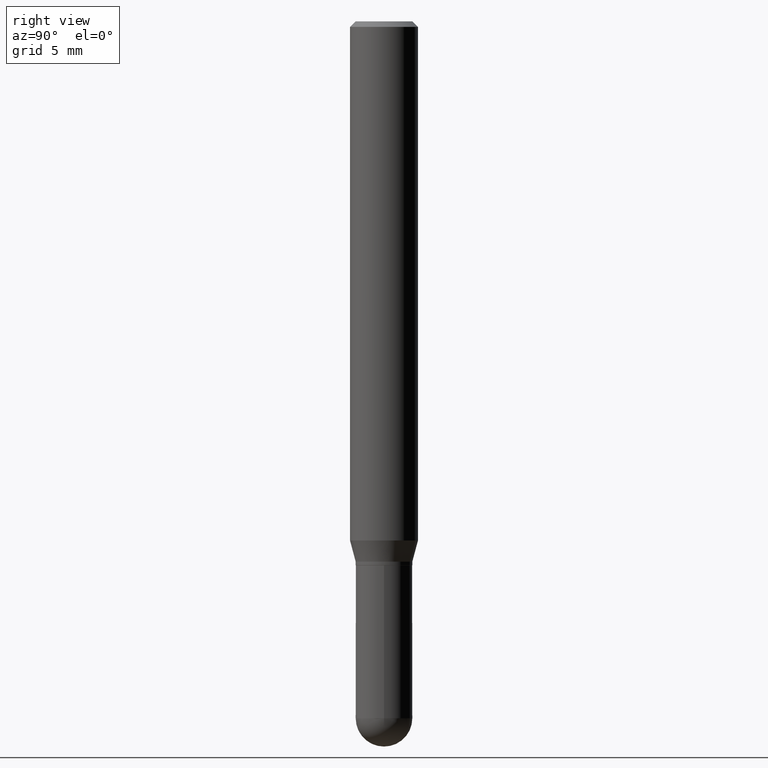
[diagram: clean part render]
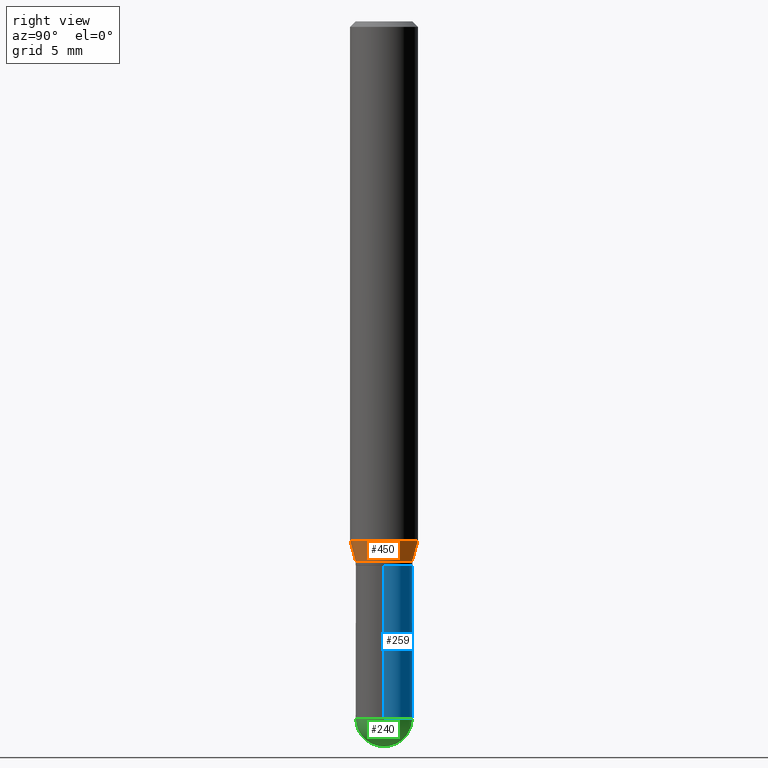
[diagram: same view with three faces highlighted in distinct colors, each labeled with its STEP entity id]
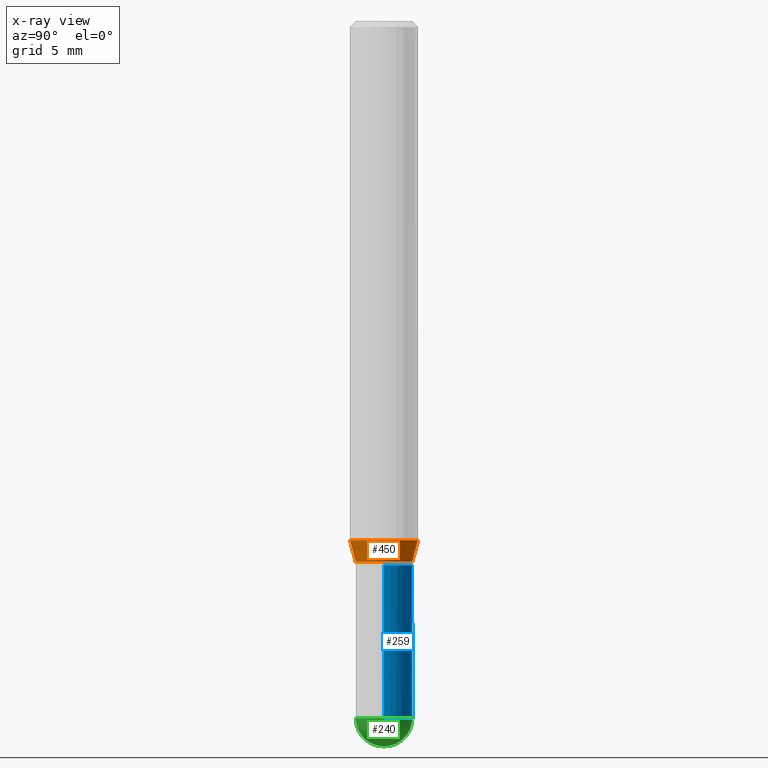
[diagram: x-ray of the same camera — body ghosted, the three highlighted faces saturated]
A machine part, right view with three faces highlighted in distinct colors.
The next image is the same camera in x-ray (body ghosted, the three faces saturated) — at least one of them is partly hidden behind the body in this view.
Their STEP definitions:

[orange] entity #450 — the highlighted conical surface has half-angle 15 deg.
#20 = CIRCLE ( 'NONE', #318, 0.09375000000000001388 ) ;
#28 = CARTESIAN_POINT ( 'NONE',  ( 5.549338766286719885E-16, 0.07809999999999443776, -1.490000000000000213 ) ) ;
#47 = DIRECTION ( 'NONE',  ( -6.982962677686265922E-15, -1.000000000000000000, 3.497884755011876582E-15 ) ) ;
#49 = DIRECTION ( 'NONE',  ( -6.982962677686265922E-15, -1.000000000000000000, 3.497884755011876582E-15 ) ) ;
#51 = EDGE_LOOP ( 'NONE', ( #351, #91, #467, #127 ) ) ;
#70 = VERTEX_POINT ( 'NONE', #473 ) ;
#91 = ORIENTED_EDGE ( 'NONE', *, *, #304, .T. ) ;
#126 = FACE_OUTER_BOUND ( 'NONE', #51, .T. ) ;
#127 = ORIENTED_EDGE ( 'NONE', *, *, #352, .F. ) ;
#132 = VECTOR ( 'NONE', #361, 39.37007874015748854 ) ;
#140 = CIRCLE ( 'NONE', #468, 0.07809999999999964193 ) ;
#142 = VERTEX_POINT ( 'NONE', #211 ) ;
#178 = DIRECTION ( 'NONE',  ( 1.839019923739604654E-15, 0.2588190451025255689, 0.9659258262890669799 ) ) ;
#190 = CONICAL_SURFACE ( 'NONE', #457, 0.07809999999999964193, 0.2617993877991509066 ) ;
#211 = CARTESIAN_POINT ( 'NONE',  ( 6.105338457019004099E-16, 0.07809999999999443776, -1.490000000000000213 ) ) ;
#214 = DIRECTION ( 'NONE',  ( -2.445771070544258513E-29, 3.491048479077063976E-15, 1.000000000000000000 ) ) ;
#218 = EDGE_CURVE ( 'NONE', #314, #142, #140, .T. ) ;
#288 = LINE ( 'NONE', #365, #132 ) ;
#304 = EDGE_CURVE ( 'NONE', #142, #70, #355, .T. ) ;
#314 = VERTEX_POINT ( 'NONE', #398 ) ;
#317 = VECTOR ( 'NONE', #178, 39.37007874015748854 ) ;
#318 = AXIS2_PLACEMENT_3D ( 'NONE', #330, #482, #411 ) ;
#330 = CARTESIAN_POINT ( 'NONE',  ( 3.501349734392323234E-29, -4.997761978698656219E-15, -1.431593404861545960 ) ) ;
#351 = ORIENTED_EDGE ( 'NONE', *, *, #218, .T. ) ;
#352 = EDGE_CURVE ( 'NONE', #314, #376, #288, .T. ) ;
#355 = LINE ( 'NONE', #28, #317 ) ;
#361 = DIRECTION ( 'NONE',  ( -1.807323732225334478E-15, -0.2588190451025187966, 0.9659258262890687563 ) ) ;
#365 = CARTESIAN_POINT ( 'NONE',  ( -5.453693851272583878E-16, -0.07810000000000484610, -1.489999999999999769 ) ) ;
#376 = VERTEX_POINT ( 'NONE', #441 ) ;
#398 = CARTESIAN_POINT ( 'NONE',  ( -5.453693851272583878E-16, -0.07810000000000484610, -1.489999999999999769 ) ) ;
#405 = DIRECTION ( 'NONE',  ( -2.445771070544258513E-29, 3.491048479077063976E-15, 1.000000000000000000 ) ) ;
#408 = CARTESIAN_POINT ( 'NONE',  ( 3.644198895110945173E-29, -5.201662233824825028E-15, -1.489999999999999991 ) ) ;
#411 = DIRECTION ( 'NONE',  ( -6.982962677686265922E-15, -1.000000000000000000, 2.913971193241880372E-15 ) ) ;
#441 = CARTESIAN_POINT ( 'NONE',  ( -6.546527510330523012E-16, -0.09375000000000500988, -1.431593404861545737 ) ) ;
#450 = ADVANCED_FACE ( 'NONE', ( #126 ), #190, .T. ) ;
#454 = CARTESIAN_POINT ( 'NONE',  ( 3.644198895110945173E-29, -5.201662233824825028E-15, -1.489999999999999991 ) ) ;
#457 = AXIS2_PLACEMENT_3D ( 'NONE', #454, #405, #47 ) ;
#467 = ORIENTED_EDGE ( 'NONE', *, *, #497, .F. ) ;
#468 = AXIS2_PLACEMENT_3D ( 'NONE', #408, #214, #49 ) ;
#473 = CARTESIAN_POINT ( 'NONE',  ( 6.661338147751288313E-16, 0.09374999999999500400, -1.431593404861546182 ) ) ;
#482 = DIRECTION ( 'NONE',  ( -2.445771070544258513E-29, 3.491048479077063976E-15, 1.000000000000000000 ) ) ;
#497 = EDGE_CURVE ( 'NONE', #376, #70, #20, .T. ) ;

[blue] entity #259 — the highlighted cylindrical surface (edge-blend (fillet) strip) has radius 1.9837 mm, axis along (-0, 0, 1).
#3 = CARTESIAN_POINT ( 'NONE',  ( 5.453693851273441764E-16, 0.07809999999999325815, -1.921900000000000386 ) ) ;
#4 = AXIS2_PLACEMENT_3D ( 'NONE', #206, #216, #379 ) ;
#17 = CARTESIAN_POINT ( 'NONE',  ( 0.07810000000000000275, -6.519119381820976762E-15, -1.921900000000000164 ) ) ;
#23 = ORIENTED_EDGE ( 'NONE', *, *, #38, .F. ) ;
#30 = FACE_OUTER_BOUND ( 'NONE', #195, .T. ) ;
#38 = EDGE_CURVE ( 'NONE', #353, #299, #208, .T. ) ;
#42 = DIRECTION ( 'NONE',  ( 1.000000000000000000, -6.982962677686266711E-15, 0.000000000000000000 ) ) ;
#56 = CIRCLE ( 'NONE', #4, 0.07810000000000000275 ) ;
#66 = DIRECTION ( 'NONE',  ( 1.000000000000000000, -6.982962677686266711E-15, 4.876176775795935232E-29 ) ) ;
#74 = EDGE_CURVE ( 'NONE', #101, #299, #316, .T. ) ;
#99 = CIRCLE ( 'NONE', #429, 0.07810000000000000275 ) ;
#101 = VERTEX_POINT ( 'NONE', #335 ) ;
#103 = DIRECTION ( 'NONE',  ( -2.445468806185136597E-29, 3.491481338843145583E-15, 1.000000000000000000 ) ) ;
#104 = DIRECTION ( 'NONE',  ( -2.445468806185136597E-29, 3.491481338843145583E-15, 1.000000000000000000 ) ) ;
#117 = CARTESIAN_POINT ( 'NONE',  ( -0.07810000000000000275, 5.549338766286382647E-16, -3.841688305489081275E-30 ) ) ;
#166 = LINE ( 'NONE', #338, #232 ) ;
#195 = EDGE_LOOP ( 'NONE', ( #253, #388, #23, #222, #256 ) ) ;
#206 = CARTESIAN_POINT ( 'NONE',  ( 4.699946498607214373E-29, -6.710277985122641264E-15, -1.921900000000000164 ) ) ;
#208 = CIRCLE ( 'NONE', #448, 0.07810000000000000275 ) ;
#216 = DIRECTION ( 'NONE',  ( -2.445468806185136597E-29, 3.491481338843145583E-15, 1.000000000000000000 ) ) ;
#222 = ORIENTED_EDGE ( 'NONE', *, *, #423, .F. ) ;
#232 = VECTOR ( 'NONE', #484, 39.37007874015748143 ) ;
#237 = CARTESIAN_POINT ( 'NONE',  ( -0.07810000000000000275, -5.418816120065042244E-15, -1.500000000000000222 ) ) ;
#238 = CARTESIAN_POINT ( 'NONE',  ( 3.668203209277704895E-29, -5.237222008264718177E-15, -1.500000000000000222 ) ) ;
#243 = DIRECTION ( 'NONE',  ( -2.445468806185136877E-29, 3.491481338843145188E-15, 1.000000000000000000 ) ) ;
#253 = ORIENTED_EDGE ( 'NONE', *, *, #360, .T. ) ;
#256 = ORIENTED_EDGE ( 'NONE', *, *, #287, .T. ) ;
#259 = ADVANCED_FACE ( 'NONE', ( #30 ), #307, .T. ) ;
#265 = AXIS2_PLACEMENT_3D ( 'NONE', #377, #104, #66 ) ;
#287 = EDGE_CURVE ( 'NONE', #485, #385, #56, .T. ) ;
#290 = VECTOR ( 'NONE', #243, 39.37007874015748143 ) ;
#299 = VERTEX_POINT ( 'NONE', #237 ) ;
#307 = CYLINDRICAL_SURFACE ( 'NONE', #265, 0.07810000000000000275 ) ;
#316 = LINE ( 'NONE', #117, #290 ) ;
#328 = DIRECTION ( 'NONE',  ( -2.445468806185136597E-29, 3.491481338843145583E-15, 1.000000000000000000 ) ) ;
#335 = CARTESIAN_POINT ( 'NONE',  ( -0.07810000000000000275, -5.418816120065042244E-15, -1.921900000000000164 ) ) ;
#338 = CARTESIAN_POINT ( 'NONE',  ( 0.07810000000000000275, -5.453693851272974364E-16, 3.808294061896625703E-30 ) ) ;
#353 = VERTEX_POINT ( 'NONE', #437 ) ;
#360 = EDGE_CURVE ( 'NONE', #385, #101, #99, .T. ) ;
#377 = CARTESIAN_POINT ( 'NONE',  ( 0.000000000000000000, 0.000000000000000000, 0.000000000000000000 ) ) ;
#379 = DIRECTION ( 'NONE',  ( 1.000000000000000000, -6.982962677686266711E-15, 0.000000000000000000 ) ) ;
#385 = VERTEX_POINT ( 'NONE', #3 ) ;
#388 = ORIENTED_EDGE ( 'NONE', *, *, #74, .T. ) ;
#400 = CARTESIAN_POINT ( 'NONE',  ( 4.699946498607214373E-29, -6.710277985122641264E-15, -1.921900000000000164 ) ) ;
#423 = EDGE_CURVE ( 'NONE', #485, #353, #166, .T. ) ;
#429 = AXIS2_PLACEMENT_3D ( 'NONE', #400, #328, #42 ) ;
#437 = CARTESIAN_POINT ( 'NONE',  ( 0.07810000000000000275, -5.782591393392015613E-15, -1.500000000000000222 ) ) ;
#448 = AXIS2_PLACEMENT_3D ( 'NONE', #238, #103, #506 ) ;
#484 = DIRECTION ( 'NONE',  ( -2.445468806185136877E-29, 3.491481338843145188E-15, 1.000000000000000000 ) ) ;
#485 = VERTEX_POINT ( 'NONE', #17 ) ;
#506 = DIRECTION ( 'NONE',  ( 1.000000000000000000, -6.982962677686266711E-15, 0.000000000000000000 ) ) ;

[green] entity #240 — the highlighted spherical surface has radius 1.9837 mm.
#3 = CARTESIAN_POINT ( 'NONE',  ( 5.453693851273441764E-16, 0.07809999999999325815, -1.921900000000000386 ) ) ;
#4 = AXIS2_PLACEMENT_3D ( 'NONE', #206, #216, #379 ) ;
#15 = CARTESIAN_POINT ( 'NONE',  ( 4.693267649888723399E-29, -6.719842476623982487E-15, -1.921900000000000164 ) ) ;
#17 = CARTESIAN_POINT ( 'NONE',  ( 0.07810000000000000275, -6.519119381820976762E-15, -1.921900000000000164 ) ) ;
#44 = AXIS2_PLACEMENT_3D ( 'NONE', #260, #384, #53 ) ;
#48 = VERTEX_POINT ( 'NONE', #504 ) ;
#52 = DIRECTION ( 'NONE',  ( 1.000000000000000000, -6.982962677686266711E-15, 0.000000000000000000 ) ) ;
#53 = DIRECTION ( 'NONE',  ( -7.105427357601000281E-15, -1.000000000000000000, 0.000000000000000000 ) ) ;
#55 = DIRECTION ( 'NONE',  ( -1.000000000000000000, 6.982962677686265922E-15, -4.883557194083112901E-29 ) ) ;
#56 = CIRCLE ( 'NONE', #4, 0.07810000000000000275 ) ;
#60 = DIRECTION ( 'NONE',  ( 6.982962677686265922E-15, 1.000000000000000000, -3.497884755011862382E-15 ) ) ;
#62 = SPHERICAL_SURFACE ( 'NONE', #247, 0.07809999999999996112 ) ;
#71 = CIRCLE ( 'NONE', #366, 0.07810000000000000275 ) ;
#94 = DIRECTION ( 'NONE',  ( -2.445468806185136597E-29, 3.491481338843145583E-15, 1.000000000000000000 ) ) ;
#122 = AXIS2_PLACEMENT_3D ( 'NONE', #486, #495, #501 ) ;
#139 = CARTESIAN_POINT ( 'NONE',  ( 4.699946498607214373E-29, -6.710277985122641264E-15, -1.921900000000000164 ) ) ;
#145 = EDGE_CURVE ( 'NONE', #48, #385, #391, .T. ) ;
#164 = ORIENTED_EDGE ( 'NONE', *, *, #145, .T. ) ;
#197 = EDGE_CURVE ( 'NONE', #280, #485, #71, .T. ) ;
#206 = CARTESIAN_POINT ( 'NONE',  ( 4.699946498607214373E-29, -6.710277985122641264E-15, -1.921900000000000164 ) ) ;
#216 = DIRECTION ( 'NONE',  ( -2.445468806185136597E-29, 3.491481338843145583E-15, 1.000000000000000000 ) ) ;
#217 = ORIENTED_EDGE ( 'NONE', *, *, #197, .F. ) ;
#240 = ADVANCED_FACE ( 'NONE', ( #418 ), #62, .T. ) ;
#247 = AXIS2_PLACEMENT_3D ( 'NONE', #15, #55, #60 ) ;
#260 = CARTESIAN_POINT ( 'NONE',  ( 4.693267649888723399E-29, -6.719842476623982487E-15, -1.921900000000000164 ) ) ;
#272 = CARTESIAN_POINT ( 'NONE',  ( -5.549338766285910317E-16, -0.07810000000000670572, -1.921899999999999720 ) ) ;
#280 = VERTEX_POINT ( 'NONE', #272 ) ;
#285 = EDGE_CURVE ( 'NONE', #48, #280, #404, .T. ) ;
#287 = EDGE_CURVE ( 'NONE', #485, #385, #56, .T. ) ;
#322 = EDGE_LOOP ( 'NONE', ( #409, #164, #494, #217 ) ) ;
#366 = AXIS2_PLACEMENT_3D ( 'NONE', #139, #94, #52 ) ;
#379 = DIRECTION ( 'NONE',  ( 1.000000000000000000, -6.982962677686266711E-15, 0.000000000000000000 ) ) ;
#384 = DIRECTION ( 'NONE',  ( -1.000000000000000000, 7.105427357601001070E-15, -4.926315508542082329E-29 ) ) ;
#385 = VERTEX_POINT ( 'NONE', #3 ) ;
#391 = CIRCLE ( 'NONE', #122, 0.07809999999999996112 ) ;
#404 = CIRCLE ( 'NONE', #44, 0.07809999999999996112 ) ;
#409 = ORIENTED_EDGE ( 'NONE', *, *, #285, .F. ) ;
#418 = FACE_OUTER_BOUND ( 'NONE', #322, .T. ) ;
#485 = VERTEX_POINT ( 'NONE', #17 ) ;
#486 = CARTESIAN_POINT ( 'NONE',  ( 4.693267649888723399E-29, -6.719842476623982487E-15, -1.921900000000000164 ) ) ;
#494 = ORIENTED_EDGE ( 'NONE', *, *, #287, .F. ) ;
#495 = DIRECTION ( 'NONE',  ( 1.000000000000000000, -6.982962677686265922E-15, 4.883557194083112340E-29 ) ) ;
#501 = DIRECTION ( 'NONE',  ( 6.982962677686266711E-15, 1.000000000000000000, 0.000000000000000000 ) ) ;
#504 = CARTESIAN_POINT ( 'NONE',  ( 4.887598188011028267E-29, -6.987744923436962171E-15, -2.000000000000000000 ) ) ;